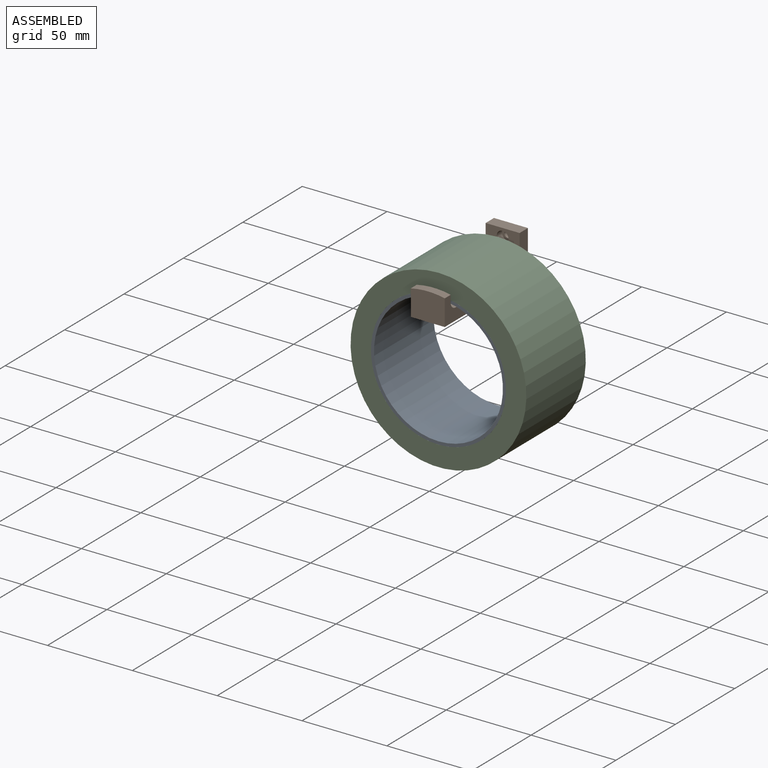
[diagram: assembled view]
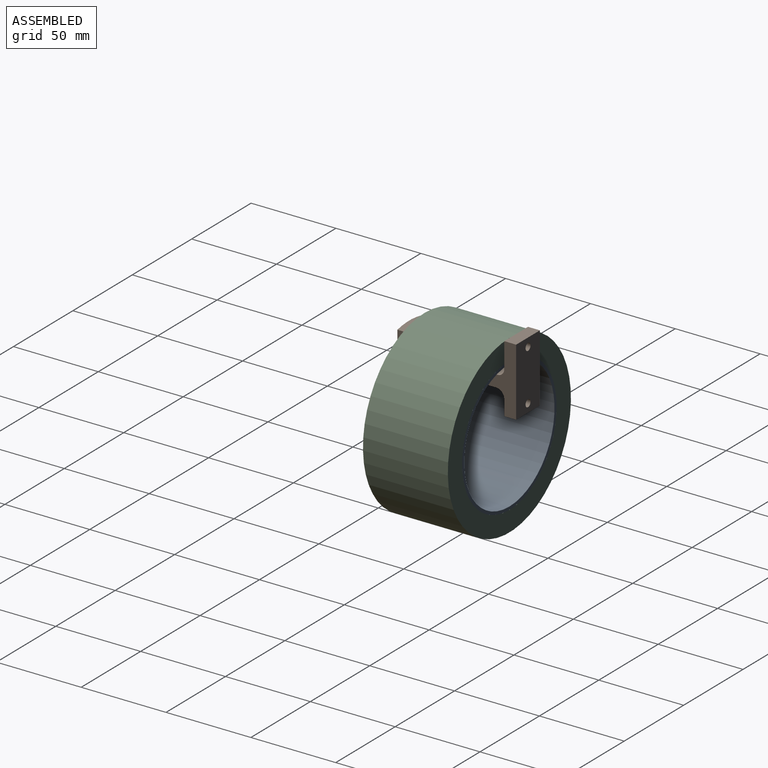
[diagram: assembled view, second angle]
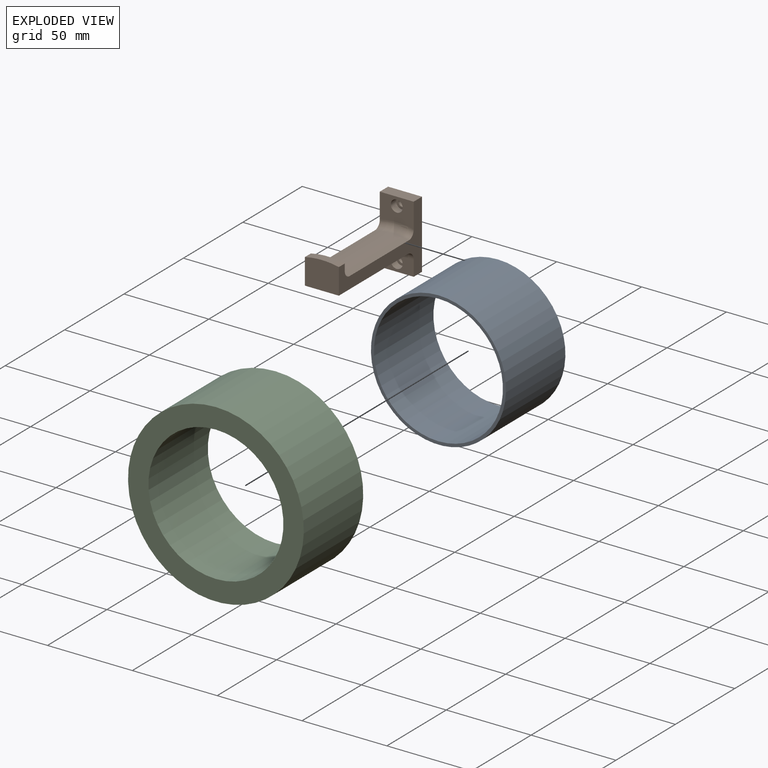
[diagram: exploded view]
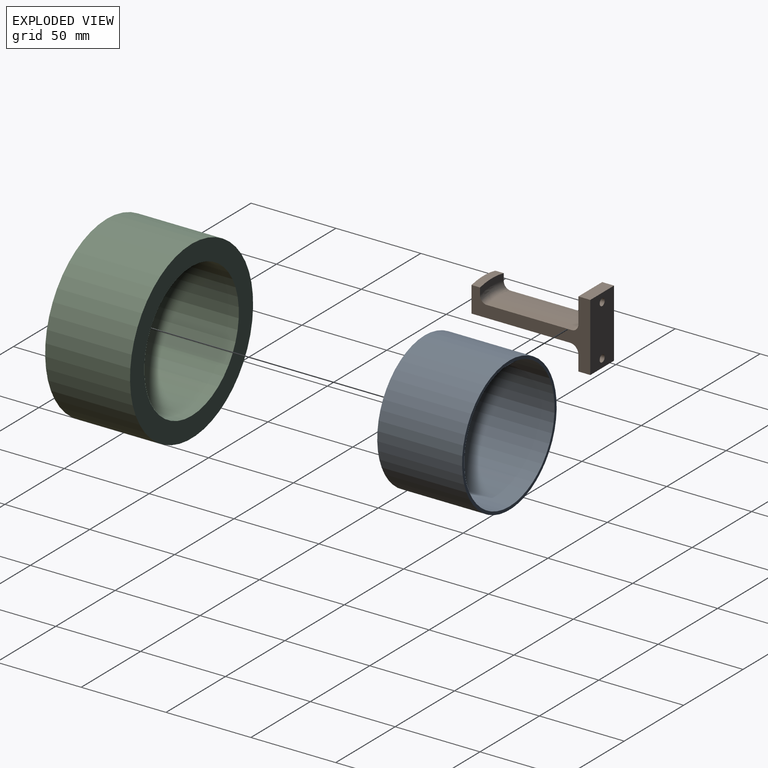
[diagram: exploded view, second angle]
ASSEMBLY  parts=3 mates=3
PART A: 4 faces, bbox 79.6x50x79.6 mm
  f0: cylinder r=38mm len=76mm, axis (0,1,0), area 11938.1mm2, adj f2,f3
  f1: cylinder r=39.8mm len=79.6mm, axis (0,1,0), area 12503.5mm2, adj f2,f3
  f2: plane 79.6x79.6mm, normal (0,-1,0), area 439.9mm2, adj f0,f1
  f3: plane 79.6x79.6mm, normal (0,1,0), area 439.9mm2, adj f0,f1
PART B: 21 faces, bbox 25.5x70x40 mm
  f0: cylinder r=2.1mm len=4.2mm, axis (0,1,0), area 33mm2, adj f9,f15
  f1: cylinder r=2.1mm len=4.2mm, axis (0,1,0), area 33mm2, adj f9,f17
  f2: cylinder r=38mm len=50mm, axis (0,1,0), area 1011.9mm2, adj f5,f7,f18,f19
  f3: plane 20x9mm, normal (0,-1,0), area 141.5mm2, adj f5,f6,f7,f16,f20
  f4: plane 20x7mm, normal (0,0,1), area 140mm2, adj f5,f7,f8,f9
  f5: plane 70x40mm, normal (-1,0,0), area 774.7mm2, adj f2,f3,f4,f6,f8,f9,f10,f11
  f6: plane 20x7mm, normal (0,0,-1), area 140mm2, adj f3,f5,f7,f9
  f7: plane 70x40mm, normal (1,0,0), area 774.7mm2, adj f2,f3,f4,f6,f8,f9,f10,f11
  f8: plane 20x14.87mm, normal (0,-1,0), area 242.7mm2, adj f4,f5,f7,f14,f19
  f9: plane 40x20mm, normal (0,1,0), area 772.3mm2, adj f0,f1,f4,f5,f6,f7
  f10: plane 58x20mm, normal (0,0,-1), area 1160mm2, adj f5,f7,f11,f20
  f11: plane 20x16.34mm, normal (0,-1,0), area 319.5mm2, adj f5,f7,f10,f12
  f12: cylinder r=46mm len=20mm, axis (0,-1,0), area 100.8mm2, adj f5,f7,f11,f13
  f13: plane 20x5.21mm, normal (0,1,0), area 80.7mm2, adj f5,f7,f12,f18
  f14: cylinder r=3.5mm len=7mm, axis (0,-1,0), area 99mm2, adj f8,f15
  f15: plane 7x7mm, normal (0,-1,0), area 24.6mm2, adj f0,f14
  f16: cylinder r=3.5mm len=7mm, axis (0,-1,0), area 99mm2, adj f3,f17
  f17: plane 7x7mm, normal (0,-1,0), area 24.6mm2, adj f1,f16
  f18: torus R=42mm, axis (0,-1,0), area 127.1mm2, adj f2,f5,f7,f13
  f19: torus R=42mm, axis (0,-1,0), area 127.1mm2, adj f2,f5,f7,f8
  f20: cylinder r=5mm len=20mm, axis (1,0,0), area 157.1mm2, adj f3,f5,f7,f10
PART C: 4 faces, bbox 103.6x50x103.6 mm
  f0: cylinder r=39.8mm len=79.6mm, axis (0,1,0), area 12503.5mm2, adj f2,f3
  f1: cylinder r=51.8mm len=103.6mm, axis (0,1,0), area 16273.4mm2, adj f2,f3
  f2: plane 103.6x103.6mm, normal (0,-1,0), area 3453.2mm2, adj f0,f1
  f3: plane 103.6x103.6mm, normal (0,1,0), area 3453.2mm2, adj f0,f1
PLACE A rot(axis=(0,1,0),180deg) t=(-9.22,20.84,-32)mm
PLACE B t=(-9.22,31.84,-12)mm fixed
PLACE C rot(axis=(0,-1,0),180deg) t=(-9.22,20.84,-32)mm
MATE planar A.f1 <-> C.f1  axis (0,-1,0) through (-9.22,-29.16,-32)mm
MATE planar A.f0 <-> B.f0  axis (0,-1,0) through (-9.22,-29.16,-32)mm
MATE cylindrical A.f0 <-> C.f1  axis (0,1,0) through (-9.22,-4.16,-32)mm
